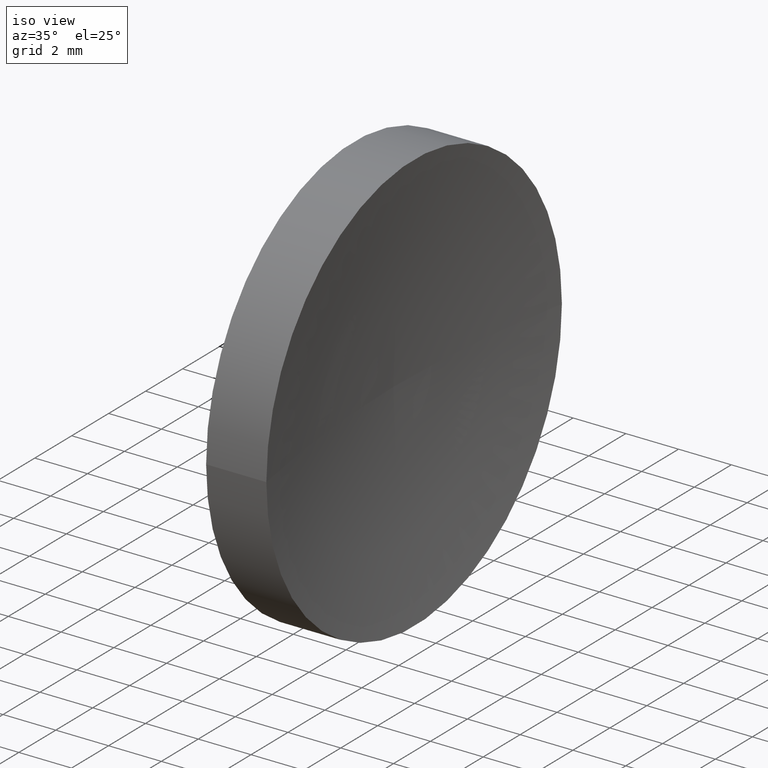
[diagram: clean part render]
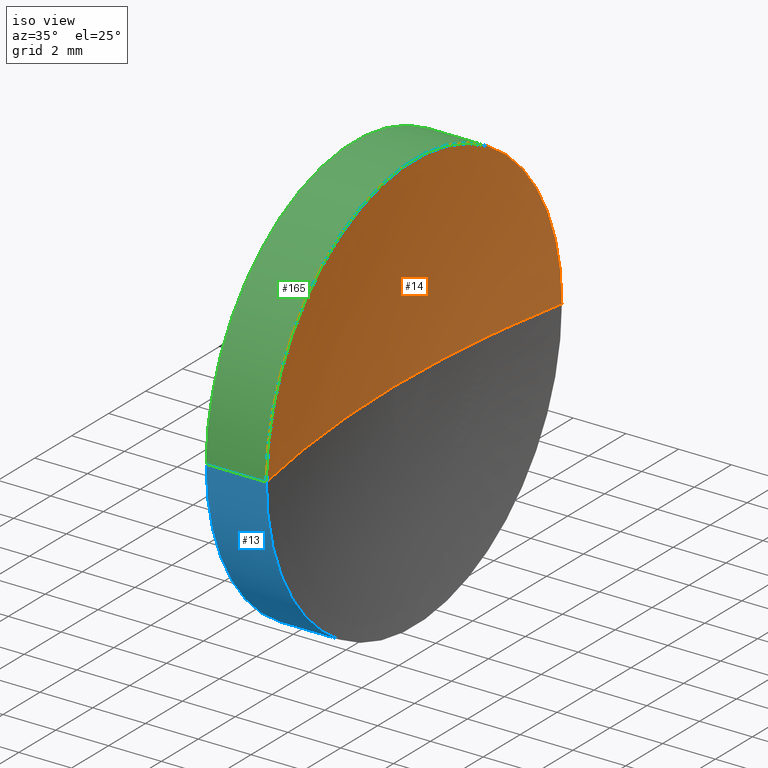
[diagram: same view with three faces highlighted in distinct colors, each labeled with its STEP entity id]
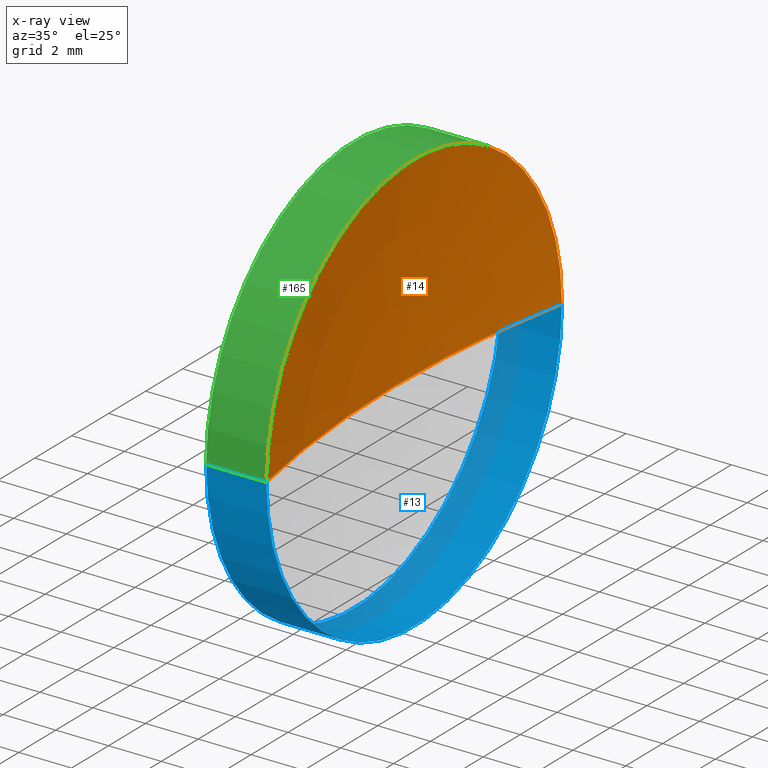
[diagram: x-ray of the same camera — body ghosted, the three highlighted faces saturated]
A machine part, iso view with three faces highlighted in distinct colors.
The next image is the same camera in x-ray (body ghosted, the three faces saturated) — at least one of them is partly hidden behind the body in this view.
Their STEP definitions:

[orange] entity #14 — the highlighted toroidal blend (fillet) surface has major radius 0.0035 mm and minor (blend) radius 41.3 mm.
#12 = TOROIDAL_SURFACE ( 'NONE', #30, -0.003511916337131583800, 41.30000000000000400 ) ;
#14 = ADVANCED_FACE ( 'NONE', ( #123 ), #12, .F. ) ;
#15 = CARTESIAN_POINT ( 'NONE',  ( 87.65442246817359300, 26.06576409914319800, 0.0000000000000000000 ) ) ;
#25 = VERTEX_POINT ( 'NONE', #161 ) ;
#28 = CIRCLE ( 'NONE', #127, 8.000000000000000000 ) ;
#30 = AXIS2_PLACEMENT_3D ( 'NONE', #166, #126, #72 ) ;
#31 = DIRECTION ( 'NONE',  ( 0.0000000000000000000, -0.0000000000000000000, -1.000000000000000000 ) ) ;
#48 = CARTESIAN_POINT ( 'NONE',  ( 47.13734215622306300, 26.06225218280608400, 0.0000000000000000000 ) ) ;
#50 = DIRECTION ( 'NONE',  ( 0.0000000000000000000, -1.000000000000000000, 0.0000000000000000000 ) ) ;
#56 = VERTEX_POINT ( 'NONE', #89 ) ;
#60 = DIRECTION ( 'NONE',  ( -4.969917281268344600E-032, -1.224646799147353200E-016, 1.000000000000000000 ) ) ;
#61 = EDGE_LOOP ( 'NONE', ( #81, #73, #154 ) ) ;
#70 = CARTESIAN_POINT ( 'NONE',  ( 47.13734215622306300, 34.06225218280610500, 9.797174393178849300E-016 ) ) ;
#72 = DIRECTION ( 'NONE',  ( -4.058245434298766700E-016, -1.000000000000000000, 0.0000000000000000000 ) ) ;
#73 = ORIENTED_EDGE ( 'NONE', *, *, #78, .F. ) ;
#78 = EDGE_CURVE ( 'NONE', #25, #80, #28, .T. ) ;
#80 = VERTEX_POINT ( 'NONE', #70 ) ;
#81 = ORIENTED_EDGE ( 'NONE', *, *, #122, .F. ) ;
#84 = AXIS2_PLACEMENT_3D ( 'NONE', #97, #60, #112 ) ;
#89 = CARTESIAN_POINT ( 'NONE',  ( 46.35442261749025100, 26.06225218280608400, 0.0000000000000000000 ) ) ;
#97 = CARTESIAN_POINT ( 'NONE',  ( 87.65442246817359300, 26.05874026646893400, -4.300857101141491200E-019 ) ) ;
#100 = CIRCLE ( 'NONE', #132, 41.30000000000000400 ) ;
#102 = CIRCLE ( 'NONE', #84, 41.30000000000000400 ) ;
#103 = EDGE_CURVE ( 'NONE', #25, #56, #100, .T. ) ;
#112 = DIRECTION ( 'NONE',  ( 0.0000000000000000000, -1.000000000000000000, -1.224646799147353200E-016 ) ) ;
#115 = DIRECTION ( 'NONE',  ( -1.000000000000000000, 0.0000000000000000000, 0.0000000000000000000 ) ) ;
#122 = EDGE_CURVE ( 'NONE', #80, #56, #102, .T. ) ;
#123 = FACE_OUTER_BOUND ( 'NONE', #61, .T. ) ;
#126 = DIRECTION ( 'NONE',  ( -1.000000000000000000, 4.058245434298766700E-016, -0.0000000000000000000 ) ) ;
#127 = AXIS2_PLACEMENT_3D ( 'NONE', #48, #135, #50 ) ;
#132 = AXIS2_PLACEMENT_3D ( 'NONE', #15, #31, #115 ) ;
#135 = DIRECTION ( 'NONE',  ( -1.000000000000000000, 4.058245434298766700E-016, -0.0000000000000000000 ) ) ;
#154 = ORIENTED_EDGE ( 'NONE', *, *, #103, .T. ) ;
#161 = CARTESIAN_POINT ( 'NONE',  ( 47.13734215622306300, 18.06225218280607000, 0.0000000000000000000 ) ) ;
#166 = CARTESIAN_POINT ( 'NONE',  ( 87.65442246817359300, 26.06225218280606600, 0.0000000000000000000 ) ) ;

[blue] entity #13 — the highlighted cylindrical surface (partial cylindrical patch) has radius 8 mm, axis along (-1, 0, -0).
#3 = ORIENTED_EDGE ( 'NONE', *, *, #164, .F. ) ;
#5 = CARTESIAN_POINT ( 'NONE',  ( 44.85442262622448300, 26.06225218280608400, 0.0000000000000000000 ) ) ;
#9 = DIRECTION ( 'NONE',  ( 0.0000000000000000000, -1.000000000000000000, 0.0000000000000000000 ) ) ;
#13 = ADVANCED_FACE ( 'NONE', ( #35 ), #160, .T. ) ;
#16 = ORIENTED_EDGE ( 'NONE', *, *, #145, .F. ) ;
#20 = CIRCLE ( 'NONE', #148, 8.000000000000000000 ) ;
#24 = EDGE_LOOP ( 'NONE', ( #3, #131, #120, #16 ) ) ;
#25 = VERTEX_POINT ( 'NONE', #161 ) ;
#33 = CIRCLE ( 'NONE', #101, 8.000000000000000000 ) ;
#35 = FACE_OUTER_BOUND ( 'NONE', #24, .T. ) ;
#39 = EDGE_CURVE ( 'NONE', #80, #25, #33, .T. ) ;
#44 = VERTEX_POINT ( 'NONE', #88 ) ;
#54 = DIRECTION ( 'NONE',  ( 0.0000000000000000000, -1.000000000000000000, 0.0000000000000000000 ) ) ;
#58 = DIRECTION ( 'NONE',  ( -1.000000000000000000, 4.058245434298766700E-016, -0.0000000000000000000 ) ) ;
#67 = LINE ( 'NONE', #128, #99 ) ;
#70 = CARTESIAN_POINT ( 'NONE',  ( 47.13734215622306300, 34.06225218280610500, 9.797174393178849300E-016 ) ) ;
#74 = CARTESIAN_POINT ( 'NONE',  ( 43.01195023616492100, 18.06225218280608400, 0.0000000000000000000 ) ) ;
#76 = LINE ( 'NONE', #74, #141 ) ;
#80 = VERTEX_POINT ( 'NONE', #70 ) ;
#82 = DIRECTION ( 'NONE',  ( -1.000000000000000000, 4.058245434298766700E-016, -0.0000000000000000000 ) ) ;
#83 = DIRECTION ( 'NONE',  ( -1.000000000000000000, 4.058245434298766700E-016, -0.0000000000000000000 ) ) ;
#88 = CARTESIAN_POINT ( 'NONE',  ( 44.85442262622448300, 18.06225218280608400, 0.0000000000000000000 ) ) ;
#90 = CARTESIAN_POINT ( 'NONE',  ( 47.13734215622306300, 26.06225218280608400, 0.0000000000000000000 ) ) ;
#93 = CARTESIAN_POINT ( 'NONE',  ( 43.01195023616492100, 26.06225218280608400, 0.0000000000000000000 ) ) ;
#99 = VECTOR ( 'NONE', #150, 1000.000000000000000 ) ;
#101 = AXIS2_PLACEMENT_3D ( 'NONE', #90, #82, #9 ) ;
#108 = DIRECTION ( 'NONE',  ( -1.000000000000000000, 4.058245434298766700E-016, -0.0000000000000000000 ) ) ;
#117 = AXIS2_PLACEMENT_3D ( 'NONE', #93, #108, #124 ) ;
#120 = ORIENTED_EDGE ( 'NONE', *, *, #155, .T. ) ;
#124 = DIRECTION ( 'NONE',  ( 0.0000000000000000000, -1.000000000000000000, 0.0000000000000000000 ) ) ;
#128 = CARTESIAN_POINT ( 'NONE',  ( 43.01195023616492100, 34.06225218280608400, 9.797174393178825700E-016 ) ) ;
#131 = ORIENTED_EDGE ( 'NONE', *, *, #39, .T. ) ;
#134 = VERTEX_POINT ( 'NONE', #163 ) ;
#141 = VECTOR ( 'NONE', #58, 1000.000000000000000 ) ;
#145 = EDGE_CURVE ( 'NONE', #134, #44, #20, .T. ) ;
#148 = AXIS2_PLACEMENT_3D ( 'NONE', #5, #83, #54 ) ;
#150 = DIRECTION ( 'NONE',  ( -1.000000000000000000, 4.058245434298766700E-016, -0.0000000000000000000 ) ) ;
#155 = EDGE_CURVE ( 'NONE', #25, #44, #76, .T. ) ;
#160 = CYLINDRICAL_SURFACE ( 'NONE', #117, 8.000000000000000000 ) ;
#161 = CARTESIAN_POINT ( 'NONE',  ( 47.13734215622306300, 18.06225218280607000, 0.0000000000000000000 ) ) ;
#163 = CARTESIAN_POINT ( 'NONE',  ( 44.85442262622448300, 34.06225218280608400, 9.797174393178825700E-016 ) ) ;
#164 = EDGE_CURVE ( 'NONE', #80, #134, #67, .T. ) ;

[green] entity #165 — the highlighted cylindrical surface (partial cylindrical patch) has radius 8 mm, axis along (-1, 0, -0).
#8 = AXIS2_PLACEMENT_3D ( 'NONE', #105, #104, #10 ) ;
#10 = DIRECTION ( 'NONE',  ( 0.0000000000000000000, -1.000000000000000000, 0.0000000000000000000 ) ) ;
#18 = CARTESIAN_POINT ( 'NONE',  ( 43.01195023616492100, 26.06225218280608400, 0.0000000000000000000 ) ) ;
#23 = EDGE_CURVE ( 'NONE', #44, #134, #107, .T. ) ;
#25 = VERTEX_POINT ( 'NONE', #161 ) ;
#28 = CIRCLE ( 'NONE', #127, 8.000000000000000000 ) ;
#37 = ORIENTED_EDGE ( 'NONE', *, *, #23, .F. ) ;
#44 = VERTEX_POINT ( 'NONE', #88 ) ;
#48 = CARTESIAN_POINT ( 'NONE',  ( 47.13734215622306300, 26.06225218280608400, 0.0000000000000000000 ) ) ;
#50 = DIRECTION ( 'NONE',  ( 0.0000000000000000000, -1.000000000000000000, 0.0000000000000000000 ) ) ;
#58 = DIRECTION ( 'NONE',  ( -1.000000000000000000, 4.058245434298766700E-016, -0.0000000000000000000 ) ) ;
#67 = LINE ( 'NONE', #128, #99 ) ;
#70 = CARTESIAN_POINT ( 'NONE',  ( 47.13734215622306300, 34.06225218280610500, 9.797174393178849300E-016 ) ) ;
#74 = CARTESIAN_POINT ( 'NONE',  ( 43.01195023616492100, 18.06225218280608400, 0.0000000000000000000 ) ) ;
#76 = LINE ( 'NONE', #74, #141 ) ;
#78 = EDGE_CURVE ( 'NONE', #25, #80, #28, .T. ) ;
#79 = DIRECTION ( 'NONE',  ( -1.000000000000000000, 4.058245434298766700E-016, -0.0000000000000000000 ) ) ;
#80 = VERTEX_POINT ( 'NONE', #70 ) ;
#87 = EDGE_LOOP ( 'NONE', ( #121, #118, #37, #92 ) ) ;
#88 = CARTESIAN_POINT ( 'NONE',  ( 44.85442262622448300, 18.06225218280608400, 0.0000000000000000000 ) ) ;
#92 = ORIENTED_EDGE ( 'NONE', *, *, #155, .F. ) ;
#99 = VECTOR ( 'NONE', #150, 1000.000000000000000 ) ;
#104 = DIRECTION ( 'NONE',  ( -1.000000000000000000, 4.058245434298766700E-016, -0.0000000000000000000 ) ) ;
#105 = CARTESIAN_POINT ( 'NONE',  ( 44.85442262622448300, 26.06225218280608400, 0.0000000000000000000 ) ) ;
#107 = CIRCLE ( 'NONE', #8, 8.000000000000000000 ) ;
#118 = ORIENTED_EDGE ( 'NONE', *, *, #164, .T. ) ;
#121 = ORIENTED_EDGE ( 'NONE', *, *, #78, .T. ) ;
#127 = AXIS2_PLACEMENT_3D ( 'NONE', #48, #135, #50 ) ;
#128 = CARTESIAN_POINT ( 'NONE',  ( 43.01195023616492100, 34.06225218280608400, 9.797174393178825700E-016 ) ) ;
#134 = VERTEX_POINT ( 'NONE', #163 ) ;
#135 = DIRECTION ( 'NONE',  ( -1.000000000000000000, 4.058245434298766700E-016, -0.0000000000000000000 ) ) ;
#138 = DIRECTION ( 'NONE',  ( 0.0000000000000000000, -1.000000000000000000, 0.0000000000000000000 ) ) ;
#141 = VECTOR ( 'NONE', #58, 1000.000000000000000 ) ;
#144 = CYLINDRICAL_SURFACE ( 'NONE', #162, 8.000000000000000000 ) ;
#150 = DIRECTION ( 'NONE',  ( -1.000000000000000000, 4.058245434298766700E-016, -0.0000000000000000000 ) ) ;
#155 = EDGE_CURVE ( 'NONE', #25, #44, #76, .T. ) ;
#159 = FACE_OUTER_BOUND ( 'NONE', #87, .T. ) ;
#161 = CARTESIAN_POINT ( 'NONE',  ( 47.13734215622306300, 18.06225218280607000, 0.0000000000000000000 ) ) ;
#162 = AXIS2_PLACEMENT_3D ( 'NONE', #18, #79, #138 ) ;
#163 = CARTESIAN_POINT ( 'NONE',  ( 44.85442262622448300, 34.06225218280608400, 9.797174393178825700E-016 ) ) ;
#164 = EDGE_CURVE ( 'NONE', #80, #134, #67, .T. ) ;
#165 = ADVANCED_FACE ( 'NONE', ( #159 ), #144, .T. ) ;